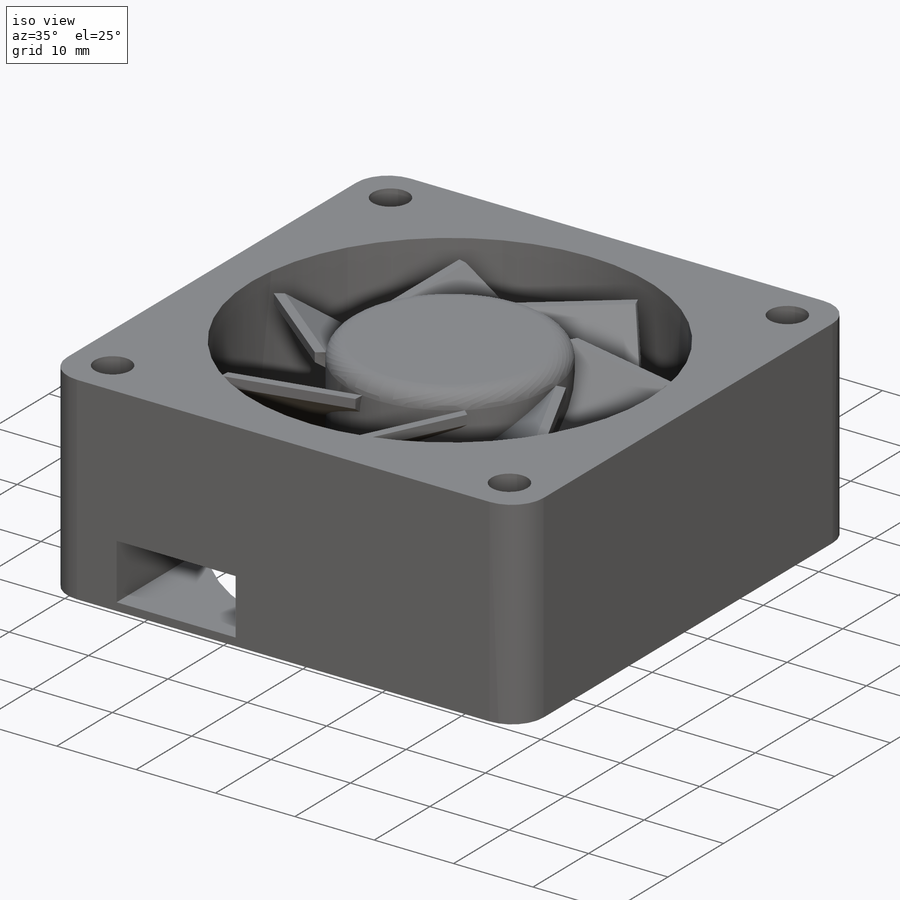
[diagram: iso view]
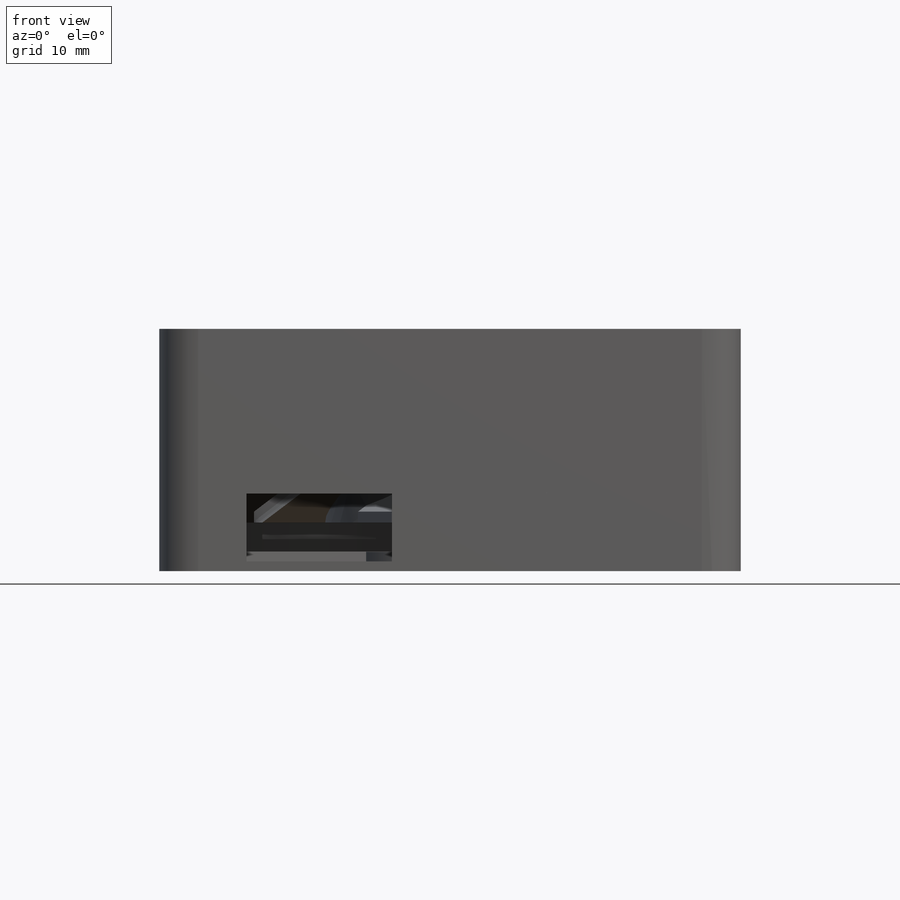
[diagram: front view]
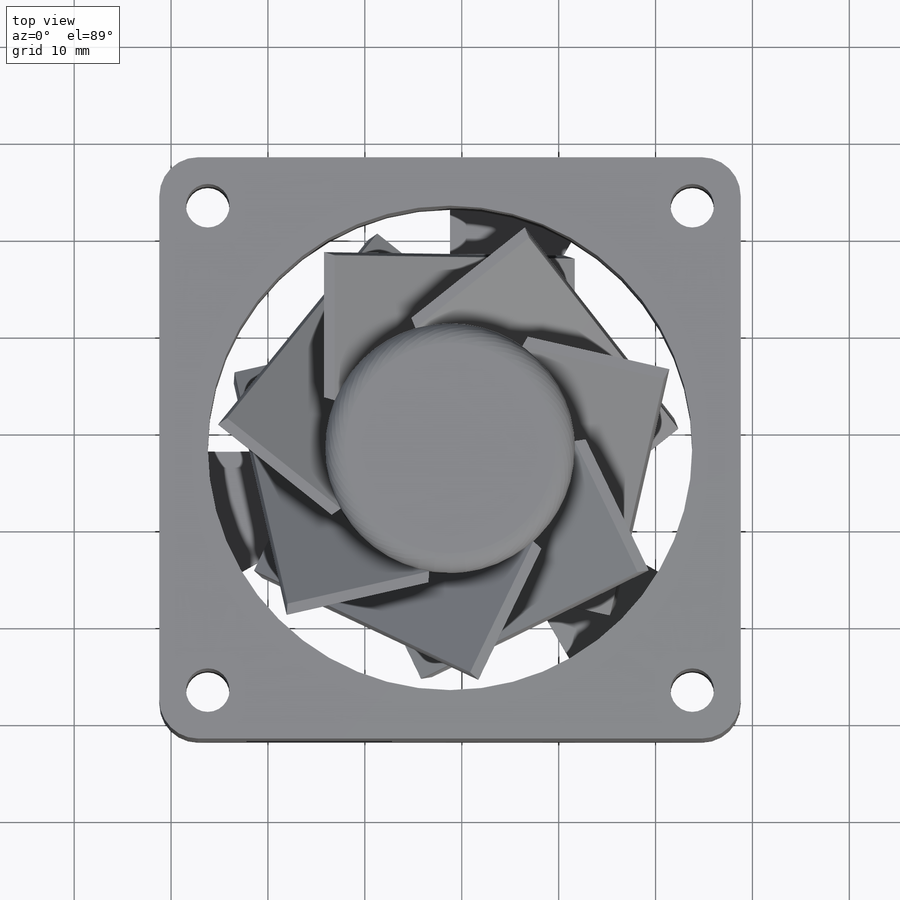
[diagram: top view]
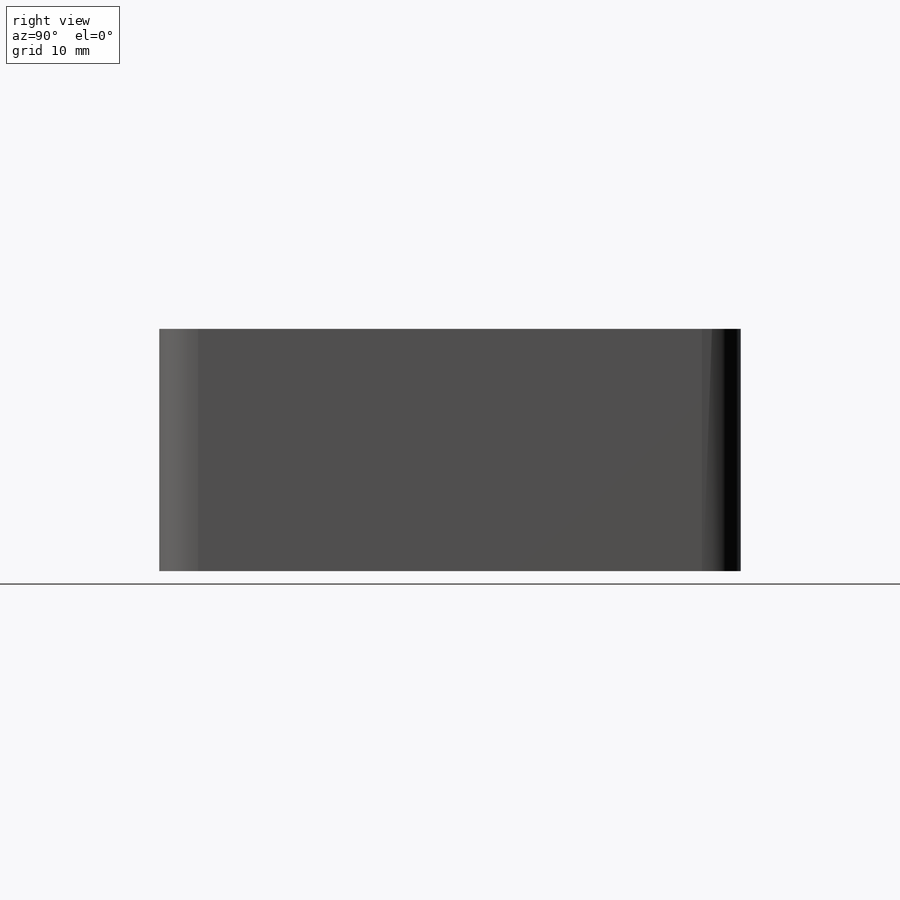
[diagram: right view]
SOLIDWORKS PART (.sldprt)
format: sldprt  version: not decoded by parser v0  size: 501,760 bytes
history: native  units: mm
features: sketch x8, fillet x5, extrude x4, cut_extrude x4, material x1, pattern_circular x1 (+11 scaffold rows collapsed)
feature tree (34):
  scaffold x11  (default folders/planes/origin — collapsed)
  material  "Material <not specified>"
  sketch  "Sketch1"  dims[D1=60.0mm D2=60.0mm]
  extrude  "Boss-Extrude1"  Depth=25mm
  sketch  "Sketch6"  dims[c1.D3=4.5mm c1.D4=4.5mm c1.D1=4.5mm c2.D4=4.5mm c2.D11=4.5mm c2.D12=4.5mm c2.D1=5.0mm c2.D2=5.0mm c3.D4=5.0mm c3.D5=5.0mm c3.D6=5.0mm c3.D7=~7.774367mm c4.D7=90.0deg c5.D7=5.0mm c5.D8=5.0mm c5.D2=5.0mm c5.D3=5.0mm c5.D5=50.0mm c5.D6=5.0mm c6.D7=5.0mm c6.D8=5.0mm c6.D9=5.0mm c6.D10=5.0mm]
  cut_extrude  "Cut-Extrude3"  [1 undecoded]
  sketch  "Sketch2"  dims[c1.D1=10.0mm c1.D2=25.0mm c1.D3=10.0mm c2.D1=25.0mm c2.D2=10.0mm c2.D3=15.0mm c3.D3=110.0deg c3.D4=~15.826965mm c3.D1=15.0mm c4.D3=~17.22007mm c5.D3=110.0deg c5.D1=14.8348mm c6.D3=3.0]
  cut_extrude  "Cut-Extrude1"  [1 undecoded]
  sketch  "Sketch4"
  cut_extrude  "Cut-Extrude2"  Depth=23mm
  fillet  "Fillet1"  Radius=4mm
  fillet  "Fillet2"  Radius=4mm
  fillet  "Fillet3"  Radius=4mm
  fillet  "Fillet4"  Radius=4mm
  sketch  "Sketch5"
  extrude  "Boss-Extrude2"  Depth=23mm
  sketch  "Sketch7"
  extrude  "Boss-Extrude3"  Depth=20mm
  fillet  "Fillet5"  Radius=2mm
  sketch  "3DSketch2"
  extrude  "Boss-Extrude4"  Depth=15mm
  pattern_circular  "CirPattern1"  Count=7 Angle=360deg
  sketch  "Sketch9"  dims[c1.D1=5.0mm c1.D2=1.0mm c1.D3=6.0mm c1.D4=15.0mm c2.D2=1.0mm c2.D3=7.0mm]
  cut_extrude  "Cut-Extrude4"  [1 undecoded]
decode coverage: 15 of 22 modeling features carry decoded parameters
note: ~ marks probable driven/reference dimensions
note: 3 parameter values undecoded
summary: no parameter record found for 3 features
note: suppression state not decoded; provenance and decode notes live in map.json
